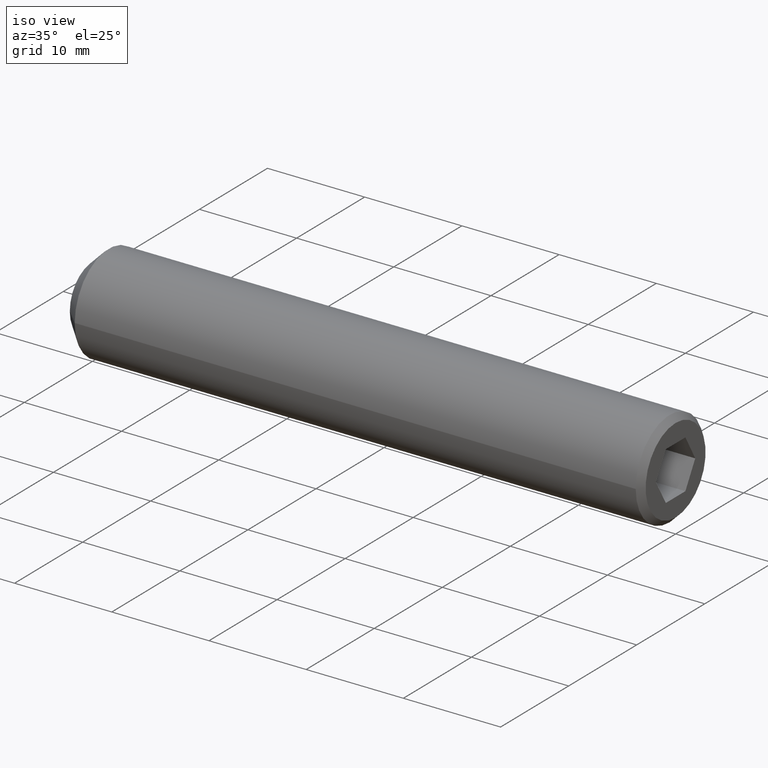
[diagram: clean part render]
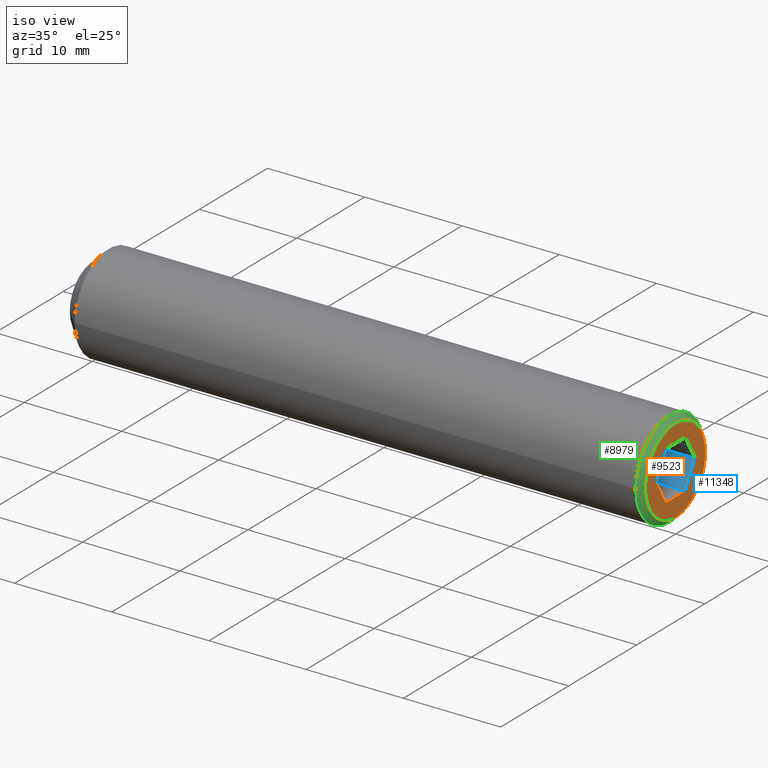
[diagram: same view with three faces highlighted in distinct colors, each labeled with its STEP entity id]
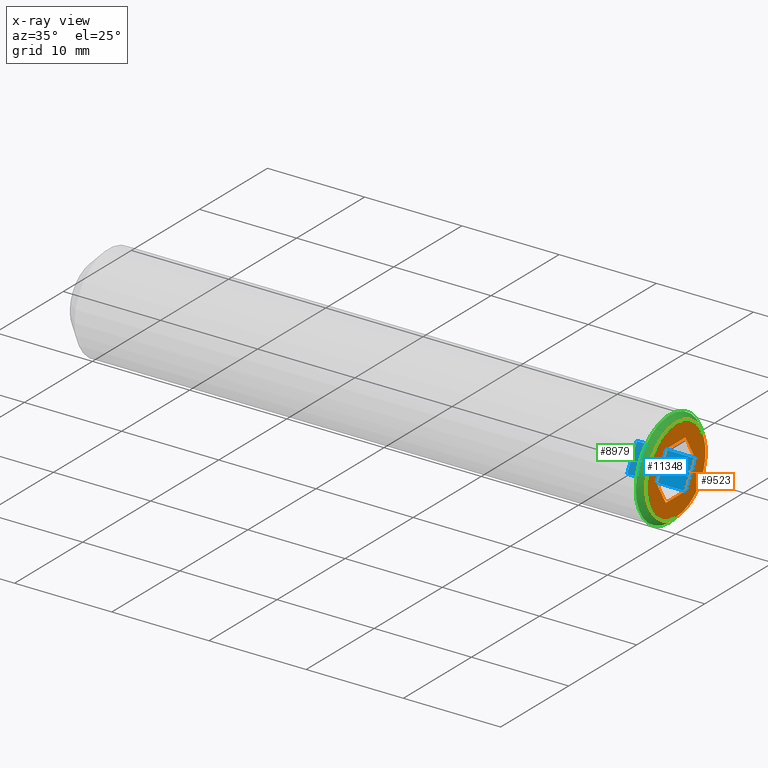
[diagram: x-ray of the same camera — body ghosted, the three highlighted faces saturated]
A machine part, iso view with three faces highlighted in distinct colors.
The next image is the same camera in x-ray (body ghosted, the three faces saturated) — at least one of them is partly hidden behind the body in this view.
Their STEP definitions:

[orange] entity #9523 — the highlighted planar face has unit normal (1, 0, 0).
#196 = DIRECTION ( 'NONE',  ( 0.0000000000000000000, 0.0000000000000000000, -1.000000000000000000 ) ) ;
#270 = LINE ( 'NONE', #4690, #1780 ) ;
#328 = CARTESIAN_POINT ( 'NONE',  ( 60.00000000000000000, 0.0000000000000000000, 0.0000000000000000000 ) ) ;
#489 = ORIENTED_EDGE ( 'NONE', *, *, #13846, .F. ) ;
#662 = EDGE_CURVE ( 'NONE', #5066, #7921, #15864, .T. ) ;
#848 = AXIS2_PLACEMENT_3D ( 'NONE', #11466, #8692, #196 ) ;
#1018 = VERTEX_POINT ( 'NONE', #4505 ) ;
#1780 = VECTOR ( 'NONE', #15817, 1000.000000000000000 ) ;
#2246 = VERTEX_POINT ( 'NONE', #7086 ) ;
#2541 = LINE ( 'NONE', #18002, #13224 ) ;
#2770 = EDGE_CURVE ( 'NONE', #1018, #2246, #16507, .T. ) ;
#3107 = DIRECTION ( 'NONE',  ( 0.0000000000000000000, 0.0000000000000000000, -1.000000000000000000 ) ) ;
#3431 = ORIENTED_EDGE ( 'NONE', *, *, #13001, .F. ) ;
#3631 = CARTESIAN_POINT ( 'NONE',  ( 60.00000000000000000, 2.886751345948125100, -6.345340530042170500E-016 ) ) ;
#3702 = DIRECTION ( 'NONE',  ( 0.0000000000000000000, 1.000000000000000000, -1.502314598737157300E-016 ) ) ;
#3704 = CIRCLE ( 'NONE', #848, 4.399999999999996800 ) ;
#3905 = EDGE_CURVE ( 'NONE', #2246, #15510, #270, .T. ) ;
#4151 = ORIENTED_EDGE ( 'NONE', *, *, #5256, .T. ) ;
#4505 = CARTESIAN_POINT ( 'NONE',  ( 60.00000000000000000, -1.443375672974070800, -2.499999999999999100 ) ) ;
#4690 = CARTESIAN_POINT ( 'NONE',  ( 60.00000000000000000, 1.443375672974062100, -2.499999999999999600 ) ) ;
#5066 = VERTEX_POINT ( 'NONE', #9082 ) ;
#5213 = CARTESIAN_POINT ( 'NONE',  ( 60.00000000000000000, 0.0000000000000000000, -4.399999999999996800 ) ) ;
#5256 = EDGE_CURVE ( 'NONE', #14894, #14894, #3704, .T. ) ;
#5422 = AXIS2_PLACEMENT_3D ( 'NONE', #328, #11471, #3107 ) ;
#5843 = PLANE ( 'NONE',  #5422 ) ;
#6148 = VERTEX_POINT ( 'NONE', #7785 ) ;
#6772 = VECTOR ( 'NONE', #17544, 1000.000000000000100 ) ;
#7086 = CARTESIAN_POINT ( 'NONE',  ( 60.00000000000000000, 1.443375672974062100, -2.499999999999999600 ) ) ;
#7785 = CARTESIAN_POINT ( 'NONE',  ( 60.00000000000000000, 1.443375672974060800, 2.500000000000000400 ) ) ;
#7921 = VERTEX_POINT ( 'NONE', #11692 ) ;
#8035 = VECTOR ( 'NONE', #16100, 1000.000000000000200 ) ;
#8236 = VECTOR ( 'NONE', #3702, 1000.000000000000000 ) ;
#8692 = DIRECTION ( 'NONE',  ( 1.000000000000000000, 0.0000000000000000000, 0.0000000000000000000 ) ) ;
#8852 = EDGE_CURVE ( 'NONE', #15510, #6148, #14183, .T. ) ;
#9082 = CARTESIAN_POINT ( 'NONE',  ( 60.00000000000000000, -1.443375672974068500, 2.500000000000000400 ) ) ;
#9523 = ADVANCED_FACE ( 'NONE', ( #14167, #16779 ), #5843, .T. ) ;
#9651 = DIRECTION ( 'NONE',  ( 0.0000000000000000000, 0.4999999999999997200, -0.8660254037844388200 ) ) ;
#9832 = DIRECTION ( 'NONE',  ( 0.0000000000000000000, -1.000000000000000000, 0.0000000000000000000 ) ) ;
#11346 = EDGE_LOOP ( 'NONE', ( #14380, #489, #15444, #12438, #11659, #3431 ) ) ;
#11466 = CARTESIAN_POINT ( 'NONE',  ( 60.00000000000000000, 0.0000000000000000000, 0.0000000000000000000 ) ) ;
#11471 = DIRECTION ( 'NONE',  ( 1.000000000000000000, 0.0000000000000000000, 0.0000000000000000000 ) ) ;
#11659 = ORIENTED_EDGE ( 'NONE', *, *, #2770, .F. ) ;
#11692 = CARTESIAN_POINT ( 'NONE',  ( 60.00000000000000000, -2.886751345948133500, -2.168404344971008900E-016 ) ) ;
#11911 = CARTESIAN_POINT ( 'NONE',  ( 60.00000000000000000, -1.443375672974070800, -2.499999999999999100 ) ) ;
#12356 = VECTOR ( 'NONE', #9832, 1000.000000000000000 ) ;
#12438 = ORIENTED_EDGE ( 'NONE', *, *, #3905, .F. ) ;
#12993 = LINE ( 'NONE', #13931, #12356 ) ;
#13001 = EDGE_CURVE ( 'NONE', #7921, #1018, #2541, .T. ) ;
#13224 = VECTOR ( 'NONE', #9651, 1000.000000000000000 ) ;
#13846 = EDGE_CURVE ( 'NONE', #6148, #5066, #12993, .T. ) ;
#13931 = CARTESIAN_POINT ( 'NONE',  ( 60.00000000000000000, 1.443375672974060800, 2.500000000000000400 ) ) ;
#13969 = CARTESIAN_POINT ( 'NONE',  ( 60.00000000000000000, 2.886751345948125100, -6.345340530042170500E-016 ) ) ;
#14167 = FACE_BOUND ( 'NONE', #11346, .T. ) ;
#14183 = LINE ( 'NONE', #3631, #6772 ) ;
#14380 = ORIENTED_EDGE ( 'NONE', *, *, #662, .F. ) ;
#14479 = CARTESIAN_POINT ( 'NONE',  ( 60.00000000000000000, -1.443375672974068500, 2.500000000000000400 ) ) ;
#14873 = EDGE_LOOP ( 'NONE', ( #4151 ) ) ;
#14894 = VERTEX_POINT ( 'NONE', #5213 ) ;
#15444 = ORIENTED_EDGE ( 'NONE', *, *, #8852, .F. ) ;
#15510 = VERTEX_POINT ( 'NONE', #13969 ) ;
#15817 = DIRECTION ( 'NONE',  ( 0.0000000000000000000, 0.4999999999999997200, 0.8660254037844388200 ) ) ;
#15864 = LINE ( 'NONE', #14479, #8035 ) ;
#16100 = DIRECTION ( 'NONE',  ( 0.0000000000000000000, -0.5000000000000001100, -0.8660254037844384900 ) ) ;
#16507 = LINE ( 'NONE', #11911, #8236 ) ;
#16779 = FACE_OUTER_BOUND ( 'NONE', #14873, .T. ) ;
#17544 = DIRECTION ( 'NONE',  ( 0.0000000000000000000, -0.4999999999999997800, 0.8660254037844387100 ) ) ;
#18002 = CARTESIAN_POINT ( 'NONE',  ( 60.00000000000000000, -2.886751345948133500, -4.766870681724039000E-018 ) ) ;

[blue] entity #11348 — the highlighted planar face has unit normal (0, 0.866, -0.5).
#166 = VECTOR ( 'NONE', #4943, 1000.000000000000000 ) ;
#270 = LINE ( 'NONE', #4690, #1780 ) ;
#409 = DIRECTION ( 'NONE',  ( 1.000000000000000000, -0.0000000000000000000, 6.123031769111886300E-017 ) ) ;
#1184 = ORIENTED_EDGE ( 'NONE', *, *, #1203, .F. ) ;
#1203 = EDGE_CURVE ( 'NONE', #1389, #15510, #17627, .T. ) ;
#1389 = VERTEX_POINT ( 'NONE', #9088 ) ;
#1390 = CARTESIAN_POINT ( 'NONE',  ( 54.00000000000000000, 1.443375672974062100, -2.500000000000000000 ) ) ;
#1669 = LINE ( 'NONE', #9076, #166 ) ;
#1780 = VECTOR ( 'NONE', #15817, 1000.000000000000000 ) ;
#1989 = PLANE ( 'NONE',  #2157 ) ;
#2157 = AXIS2_PLACEMENT_3D ( 'NONE', #11754, #15917, #11815 ) ;
#2246 = VERTEX_POINT ( 'NONE', #7086 ) ;
#2674 = DIRECTION ( 'NONE',  ( 0.0000000000000000000, 0.4999999999999997200, 0.8660254037844388200 ) ) ;
#3277 = CARTESIAN_POINT ( 'NONE',  ( 54.00000000000000000, 1.443375672974062100, -2.500000000000000000 ) ) ;
#3655 = EDGE_CURVE ( 'NONE', #6960, #1389, #1669, .T. ) ;
#3905 = EDGE_CURVE ( 'NONE', #2246, #15510, #270, .T. ) ;
#4439 = CARTESIAN_POINT ( 'NONE',  ( 54.00000000000000000, 1.443375672974062100, -2.500000000000000000 ) ) ;
#4534 = VECTOR ( 'NONE', #409, 1000.000000000000000 ) ;
#4690 = CARTESIAN_POINT ( 'NONE',  ( 60.00000000000000000, 1.443375672974062100, -2.499999999999999600 ) ) ;
#4841 = ORIENTED_EDGE ( 'NONE', *, *, #9441, .T. ) ;
#4943 = DIRECTION ( 'NONE',  ( 0.0000000000000000000, 0.4999999999999997200, 0.8660254037844388200 ) ) ;
#5926 = CARTESIAN_POINT ( 'NONE',  ( 54.00000000000000000, 2.886751345948125100, -1.001915959150930300E-015 ) ) ;
#6011 = VERTEX_POINT ( 'NONE', #3277 ) ;
#6348 = ORIENTED_EDGE ( 'NONE', *, *, #3655, .F. ) ;
#6440 = LINE ( 'NONE', #1390, #9068 ) ;
#6960 = VERTEX_POINT ( 'NONE', #16242 ) ;
#7086 = CARTESIAN_POINT ( 'NONE',  ( 60.00000000000000000, 1.443375672974062100, -2.499999999999999600 ) ) ;
#8335 = EDGE_LOOP ( 'NONE', ( #11143, #1184, #6348, #17552, #4841 ) ) ;
#9068 = VECTOR ( 'NONE', #2674, 1000.000000000000000 ) ;
#9076 = CARTESIAN_POINT ( 'NONE',  ( 54.00000000000000000, 1.443375672974062100, -2.500000000000000000 ) ) ;
#9088 = CARTESIAN_POINT ( 'NONE',  ( 54.00000000000000000, 2.886751345948125100, -1.001915959150930300E-015 ) ) ;
#9441 = EDGE_CURVE ( 'NONE', #6011, #2246, #10434, .T. ) ;
#10434 = LINE ( 'NONE', #4439, #13674 ) ;
#11143 = ORIENTED_EDGE ( 'NONE', *, *, #3905, .T. ) ;
#11348 = ADVANCED_FACE ( 'NONE', ( #13459 ), #1989, .F. ) ;
#11754 = CARTESIAN_POINT ( 'NONE',  ( 54.00000000000000000, 1.443375672974062100, -2.500000000000000000 ) ) ;
#11815 = DIRECTION ( 'NONE',  ( 0.0000000000000000000, 0.4999999999999997200, 0.8660254037844388200 ) ) ;
#12577 = EDGE_CURVE ( 'NONE', #6011, #6960, #6440, .T. ) ;
#13459 = FACE_OUTER_BOUND ( 'NONE', #8335, .T. ) ;
#13674 = VECTOR ( 'NONE', #14130, 1000.000000000000000 ) ;
#13969 = CARTESIAN_POINT ( 'NONE',  ( 60.00000000000000000, 2.886751345948125100, -6.345340530042170500E-016 ) ) ;
#14130 = DIRECTION ( 'NONE',  ( 1.000000000000000000, -0.0000000000000000000, 6.123031769111886300E-017 ) ) ;
#15510 = VERTEX_POINT ( 'NONE', #13969 ) ;
#15817 = DIRECTION ( 'NONE',  ( 0.0000000000000000000, 0.4999999999999997200, 0.8660254037844388200 ) ) ;
#15917 = DIRECTION ( 'NONE',  ( 3.061515884555941900E-017, 0.8660254037844388200, -0.4999999999999997200 ) ) ;
#16242 = CARTESIAN_POINT ( 'NONE',  ( 53.99999999999999300, 2.165063509461095500, -1.250000000000001300 ) ) ;
#17552 = ORIENTED_EDGE ( 'NONE', *, *, #12577, .F. ) ;
#17627 = LINE ( 'NONE', #5926, #4534 ) ;

[green] entity #8979 — the highlighted conical surface has half-angle 45 deg.
#196 = DIRECTION ( 'NONE',  ( 0.0000000000000000000, 0.0000000000000000000, -1.000000000000000000 ) ) ;
#848 = AXIS2_PLACEMENT_3D ( 'NONE', #11466, #8692, #196 ) ;
#1252 = EDGE_CURVE ( 'NONE', #7059, #7059, #2786, .T. ) ;
#2786 = CIRCLE ( 'NONE', #6768, 5.000000000000000000 ) ;
#3590 = FACE_BOUND ( 'NONE', #12949, .T. ) ;
#3704 = CIRCLE ( 'NONE', #848, 4.399999999999996800 ) ;
#3876 = CARTESIAN_POINT ( 'NONE',  ( 60.00000000000000000, 0.0000000000000000000, 0.0000000000000000000 ) ) ;
#5213 = CARTESIAN_POINT ( 'NONE',  ( 60.00000000000000000, 0.0000000000000000000, -4.399999999999996800 ) ) ;
#5256 = EDGE_CURVE ( 'NONE', #14894, #14894, #3704, .T. ) ;
#6683 = DIRECTION ( 'NONE',  ( -1.000000000000000000, 0.0000000000000000000, 0.0000000000000000000 ) ) ;
#6768 = AXIS2_PLACEMENT_3D ( 'NONE', #15470, #7147, #8543 ) ;
#7059 = VERTEX_POINT ( 'NONE', #13565 ) ;
#7147 = DIRECTION ( 'NONE',  ( -1.000000000000000000, 0.0000000000000000000, 0.0000000000000000000 ) ) ;
#8543 = DIRECTION ( 'NONE',  ( 0.0000000000000000000, 0.0000000000000000000, -1.000000000000000000 ) ) ;
#8692 = DIRECTION ( 'NONE',  ( 1.000000000000000000, 0.0000000000000000000, 0.0000000000000000000 ) ) ;
#8979 = ADVANCED_FACE ( 'NONE', ( #11028, #3590 ), #12128, .T. ) ;
#11028 = FACE_OUTER_BOUND ( 'NONE', #12272, .T. ) ;
#11466 = CARTESIAN_POINT ( 'NONE',  ( 60.00000000000000000, 0.0000000000000000000, 0.0000000000000000000 ) ) ;
#12128 = CONICAL_SURFACE ( 'NONE', #13925, 4.399999999999996800, 0.7853981633974425100 ) ;
#12272 = EDGE_LOOP ( 'NONE', ( #17276 ) ) ;
#12949 = EDGE_LOOP ( 'NONE', ( #14641 ) ) ;
#13565 = CARTESIAN_POINT ( 'NONE',  ( 59.39999999999998400, 0.0000000000000000000, -5.000000000000000000 ) ) ;
#13925 = AXIS2_PLACEMENT_3D ( 'NONE', #3876, #6683, #16418 ) ;
#14641 = ORIENTED_EDGE ( 'NONE', *, *, #5256, .F. ) ;
#14894 = VERTEX_POINT ( 'NONE', #5213 ) ;
#15470 = CARTESIAN_POINT ( 'NONE',  ( 59.39999999999998400, 0.0000000000000000000, 0.0000000000000000000 ) ) ;
#16418 = DIRECTION ( 'NONE',  ( 0.0000000000000000000, 0.0000000000000000000, 1.000000000000000000 ) ) ;
#17276 = ORIENTED_EDGE ( 'NONE', *, *, #1252, .F. ) ;